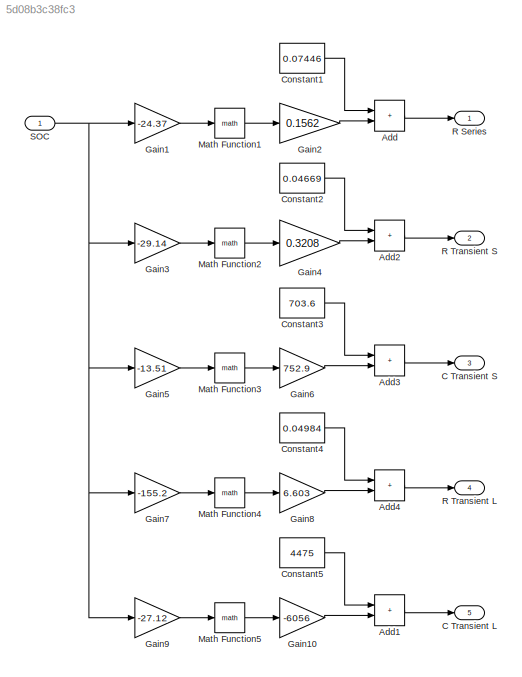
MODEL slx_5d08b3c38fc3
KIND model
CONFIG AbsTol = auto
CONFIG EnableMultiTasking = off
CONFIG FixedStep = auto
CONFIG MaxStep = auto
CONFIG MinStep = auto
CONFIG RelTol = 1e-3
CONFIG SampleTimeConstraint = Unconstrained
CONFIG SolverName = VariableStepAuto
CONFIG StartTime = 0.0
CONFIG StopTime = 10.0
BLOCK [Sum] Add
  IconShape = rectangular
BLOCK [Sum] Add1
  IconShape = rectangular
BLOCK [Sum] Add2
  IconShape = rectangular
BLOCK [Sum] Add3
  IconShape = rectangular
BLOCK [Sum] Add4
  IconShape = rectangular
BLOCK [Outport] C Transient L
  Port = 5
BLOCK [Outport] C Transient S
  Port = 3
BLOCK [Constant] Constant1
  Value = 0.07446
BLOCK [Constant] Constant2
  Value = 0.04669
BLOCK [Constant] Constant3
  Value = 703.6
BLOCK [Constant] Constant4
  Value = 0.04984
BLOCK [Constant] Constant5
  Value = 4475
BLOCK [Gain] Gain1
  Gain = -24.37
BLOCK [Gain] Gain10
  Gain = -6056
BLOCK [Gain] Gain2
  Gain = 0.1562
BLOCK [Gain] Gain3
  Gain = -29.14
BLOCK [Gain] Gain4
  Gain = 0.3208
BLOCK [Gain] Gain5
  Gain = -13.51
BLOCK [Gain] Gain6
  Gain = 752.9
BLOCK [Gain] Gain7
  Gain = -155.2
BLOCK [Gain] Gain8
  Gain = 6.603
BLOCK [Gain] Gain9
  Gain = -27.12
BLOCK [Math] Math Function1
BLOCK [Math] Math Function2
BLOCK [Math] Math Function3
BLOCK [Math] Math Function4
BLOCK [Math] Math Function5
BLOCK [Outport] R Series
BLOCK [Outport] R Transient L
  Port = 4
BLOCK [Outport] R Transient S
  Port = 2
BLOCK [Inport] SOC
LINE Add1:1 -> C Transient L:1
LINE Add2:1 -> R Transient S:1
LINE Add3:1 -> C Transient S:1
LINE Add4:1 -> R Transient L:1
LINE Add:1 -> R Series:1
LINE Constant1:1 -> Add:1
LINE Constant2:1 -> Add2:1
LINE Constant3:1 -> Add3:1
LINE Constant4:1 -> Add4:1
LINE Constant5:1 -> Add1:1
LINE Gain10:1 -> Add1:2
LINE Gain1:1 -> Math Function1:1
LINE Gain2:1 -> Add:2
LINE Gain3:1 -> Math Function2:1
LINE Gain4:1 -> Add2:2
LINE Gain5:1 -> Math Function3:1
LINE Gain6:1 -> Add3:2
LINE Gain7:1 -> Math Function4:1
LINE Gain8:1 -> Add4:2
LINE Gain9:1 -> Math Function5:1
LINE Math Function1:1 -> Gain2:1
LINE Math Function2:1 -> Gain4:1
LINE Math Function3:1 -> Gain6:1
LINE Math Function4:1 -> Gain8:1
LINE Math Function5:1 -> Gain10:1
NET SOC:1 -> Gain1:1, Gain3:1, Gain5:1, Gain7:1, Gain9:1
note: NET lines group one-source signal fan-out (src -> all destinations, sorted); 1:1 wires keep LINE
